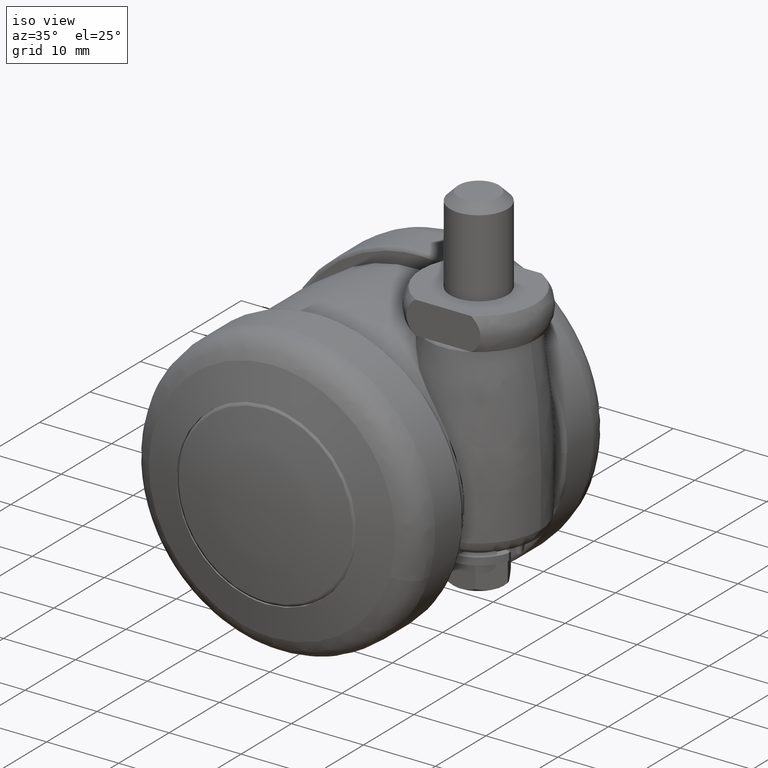
[diagram: clean part render]
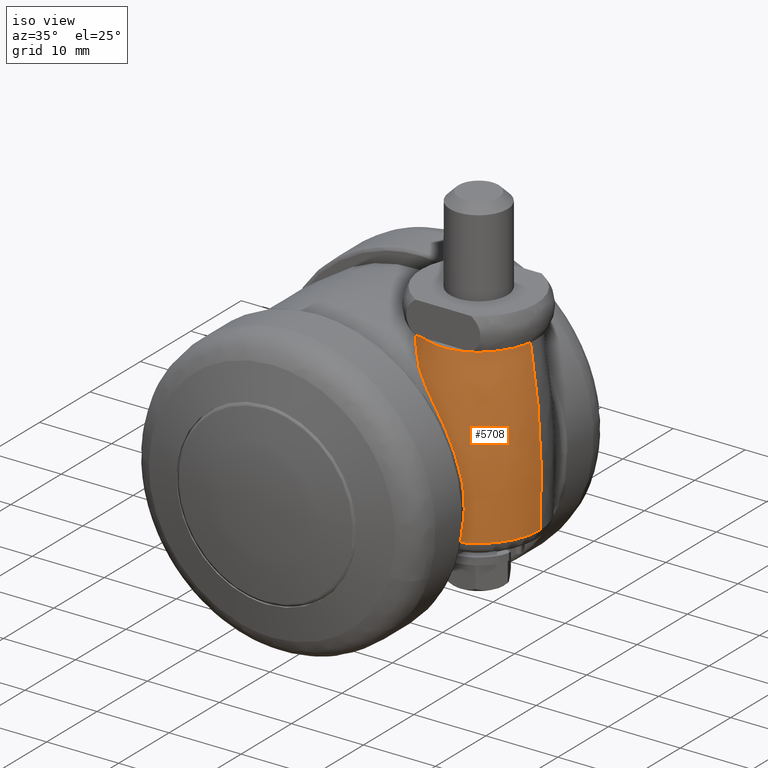
[diagram: same view with one face highlighted and labeled with its STEP entity id]
A machine part, iso view. The second image highlights one B-rep face of the part: STEP entity #5708.
In plain terms, the highlighted face is a freeform B-spline surface patch.
Its self-contained STEP definition (entity closure, byte-faithful):
#4605=CARTESIAN_POINT('',(9.469562980736400,-4.558344511186321,18.587648668325151));
#4606=VERTEX_POINT('',#4605);
#4632=CARTESIAN_POINT('',(22.166813595573341,0.000018812376593,18.587667433410850));
#4633=VERTEX_POINT('',#4632);
#4634=CARTESIAN_POINT('',(22.166813595573338,0.000018812376593,18.587667433410854));
#4635=CARTESIAN_POINT('',(22.166820623013216,-5.032931095471879,18.587665067983547));
#4636=CARTESIAN_POINT('',(17.432674891505240,-6.741328736548574,18.587658067311470));
#4637=CARTESIAN_POINT('',(12.681906281545443,-8.455725028267974,18.587651042058134));
#4638=CARTESIAN_POINT('',(9.469562980736400,-4.558344511186321,18.587648668325151));
#4646=(BOUNDED_CURVE()B_SPLINE_CURVE(2,(#4634,#4635,#4636,#4637,#4638),.UNSPECIFIED.,.F.,.U.)B_SPLINE_CURVE_WITH_KNOTS((3,2,3),(0.500715487659152,0.750000000000000,1.0),.UNSPECIFIED.)CURVE()GEOMETRIC_REPRESENTATION_ITEM()RATIONAL_B_SPLINE_CURVE((0.998957888644687,0.817936874594578,1.0,0.817414323401201,1.0))REPRESENTATION_ITEM(''));
#4647=EDGE_CURVE('',#4633,#4606,#4646,.T.);
#5566=CARTESIAN_POINT('',(23.545500375795619,0.000000415544947,-4.766490020556413));
#5567=VERTEX_POINT('',#5566);
#5568=CARTESIAN_POINT('',(23.545500375795616,0.000000415544947,-4.766490020556413));
#5569=CARTESIAN_POINT('',(24.231514440257477,0.000009613960770,6.991781408170732));
#5570=CARTESIAN_POINT('',(22.166813595573341,0.000018812376593,18.587667433410854));
#5578=(BOUNDED_CURVE()B_SPLINE_CURVE(2,(#5568,#5569,#5570),.UNSPECIFIED.,.F.,.U.)B_SPLINE_CURVE_WITH_KNOTS((3,3),(0.431725213207381,0.706914619218559),.UNSPECIFIED.)CURVE()GEOMETRIC_REPRESENTATION_ITEM()RATIONAL_B_SPLINE_CURVE((0.957236199646177,0.953961265613268,0.963886331076210))REPRESENTATION_ITEM(''));
#5579=EDGE_CURVE('',#5567,#4633,#5578,.T.);
#5631=CARTESIAN_POINT('',(23.470355027289411,0.092915016359539,-5.936482803830306));
#5632=CARTESIAN_POINT('',(24.377131483636724,0.102861842555668,6.996089585604014));
#5633=CARTESIAN_POINT('',(21.956117361943793,0.076304683381225,19.732351312355238));
#5634=CARTESIAN_POINT('',(23.470355027289404,0.046563292742930,-5.936482803830306));
#5635=CARTESIAN_POINT('',(24.377131483636724,0.051548030390085,6.996089585604013));
#5636=CARTESIAN_POINT('',(21.956117361943793,0.038239215243616,19.732351312355245));
#5637=CARTESIAN_POINT('',(23.470355027289415,-8.470355027289411,-5.936482803830309));
#5638=CARTESIAN_POINT('',(24.377131483636720,-9.377131483636724,6.996089585604016));
#5639=CARTESIAN_POINT('',(21.956117361943793,-6.956117361943795,19.732351312355245));
#5640=CARTESIAN_POINT('',(15.000000000000002,-8.470355027289410,-5.936482803830306));
#5641=CARTESIAN_POINT('',(14.999999999999998,-9.377131483636722,6.996089585604014));
#5642=CARTESIAN_POINT('',(15.000000000000002,-6.956117361943793,19.732351312355238));
#5643=CARTESIAN_POINT('',(10.320090883209039,-8.470355027289411,-5.936482803830309));
#5644=CARTESIAN_POINT('',(9.819092826896258,-9.377131483636724,6.996089585604016));
#5645=CARTESIAN_POINT('',(11.156713980140427,-6.956117361943795,19.732351312355252));
#5646=CARTESIAN_POINT('',(7.829160772843806,-4.508434214514500,-5.936482803830307));
#5647=CARTESIAN_POINT('',(7.061501310815590,-4.991075377434054,6.996089585604016));
#5648=CARTESIAN_POINT('',(9.111085180370385,-3.702465529924973,19.732351312355235));
#5656=(BOUNDED_SURFACE()B_SPLINE_SURFACE(2,2,((#5631,#5634,#5637,#5640,#5643,#5646),(#5632,#5635,#5638,#5641,#5644,#5647),(#5633,#5636,#5639,#5642,#5645,#5648)),.UNSPECIFIED.,.F.,.F.,.U.)B_SPLINE_SURFACE_WITH_KNOTS((3,3),(3,1,2,3),(0.0,25.820510259507149),(0.0,0.110256167357326,14.260235317386250,23.257407160079531),.UNSPECIFIED.)GEOMETRIC_REPRESENTATION_ITEM()RATIONAL_B_SPLINE_SURFACE(((0.961967179643957,0.959781739743152,0.677122837257671,0.957596299842348,0.779259080159280,0.827710973650760),(0.957620119602746,0.955444555546634,0.674062968177809,0.953268991490521,0.775737664792110,0.823970607684677),(0.969315044144095,0.967112911037322,0.682294954314679,0.964910777930550,0.785211351975488,0.834033339120561)))REPRESENTATION_ITEM('')SURFACE());
#5657=ORIENTED_EDGE('',*,*,#4647,.T.);
#5658=CARTESIAN_POINT('',(17.914251238862551,-8.033225897663630,-4.766488081632760));
#5659=VERTEX_POINT('',#5658);
#5660=CARTESIAN_POINT('',(9.469562980736400,-4.558344511186321,18.587648668325151));
#5661=CARTESIAN_POINT('',(9.522647911813259,-4.647192159379606,18.492672511386541));
#5662=CARTESIAN_POINT('',(9.630967525361267,-4.828485470338443,18.298874000073230));
#5663=CARTESIAN_POINT('',(9.803309649345174,-5.088995110247503,17.990791521869681));
#5664=CARTESIAN_POINT('',(9.987172281756660,-5.347327655211088,17.662948551871349));
#5665=CARTESIAN_POINT('',(10.183565591120560,-5.601630176878010,17.314521326099200));
#5666=CARTESIAN_POINT('',(10.417118154698720,-5.881276489180098,16.900472924935531));
#5667=CARTESIAN_POINT('',(10.693742502482840,-6.180646222318583,16.421655345625631));
#5668=CARTESIAN_POINT('',(11.021524352406990,-6.493619299257633,15.880922676385310));
#5669=CARTESIAN_POINT('',(11.322745473764400,-6.749481021051217,15.390513918397160));
#5670=CARTESIAN_POINT('',(11.605308315925029,-6.962251028202400,14.964946106803721));
#5671=CARTESIAN_POINT('',(11.872843277976180,-7.140057937106619,14.613224586828970));
#5672=CARTESIAN_POINT('',(12.168658252919149,-7.313739979288427,14.261516713845490));
#5673=CARTESIAN_POINT('',(12.495424011758249,-7.480226561177429,13.915722531995559));
#5674=CARTESIAN_POINT('',(12.831415062848279,-7.629609715812057,13.574395227473881));
#5675=CARTESIAN_POINT('',(13.153237643849740,-7.756680748529542,13.235706082130349));
#5676=CARTESIAN_POINT('',(13.453246345789941,-7.861616828497904,12.911460177974581));
#5677=CARTESIAN_POINT('',(14.165853423388540,-8.084412025193544,12.103384487530290));
#5678=CARTESIAN_POINT('',(15.249746560589140,-8.290528372416048,10.701837780389191));
#5679=CARTESIAN_POINT('',(16.527208780844830,-8.328478390659342,8.559554663196654));
#5680=CARTESIAN_POINT('',(17.562985986185488,-8.221487823285099,6.154453176994942));
#5681=CARTESIAN_POINT('',(18.289905542608299,-8.056737200824452,3.534899384163263));
#5682=CARTESIAN_POINT('',(18.548800543006440,-7.966981407795809,1.307773795213614));
#5683=CARTESIAN_POINT('',(18.565929674801058,-7.943558212951558,-0.363505969935154));
#5684=CARTESIAN_POINT('',(18.508655724735199,-7.945115745067452,-1.478207168380804));
#5685=CARTESIAN_POINT('',(18.381423423391759,-7.962893985948998,-2.584428035372303));
#5686=CARTESIAN_POINT('',(18.190247662137530,-7.993698802326354,-3.683659902290555));
#5687=CARTESIAN_POINT('',(18.006417525811891,-8.020026213523160,-4.404888277150308));
#5688=CARTESIAN_POINT('',(17.914251238862551,-8.033225897663630,-4.766488081632760));
#5689=B_SPLINE_CURVE_WITH_KNOTS('',3,(#5660,#5661,#5662,#5663,#5664,#5665,#5666,#5667,#5668,#5669,#5670,#5671,#5672,#5673,#5674,#5675,#5676,#5677,#5678,#5679,#5680,#5681,#5682,#5683,#5684,#5685,#5686,#5687,#5688),.UNSPECIFIED.,.F.,.U.,(4,1,1,1,1,1,1,1,1,1,1,1,1,1,1,1,1,1,1,1,1,1,1,1,1,1,4),(0.0,0.015706922783561,0.032049920220868,0.049044375485431,0.066703913947134,0.085040603246270,0.110711356817357,0.137003024173494,0.163918060823972,0.181127222105187,0.198862922980364,0.217157227501462,0.236040149829317,0.255205861199777,0.273251013001569,0.290171983054678,0.305968742894483,0.396270504114095,0.488539098153176,0.583984139401336,0.688461476578434,0.792017955945456,0.833781966881467,0.875302063472451,0.916740734417870,0.958256586671725,1.0),.UNSPECIFIED.);
#5690=EDGE_CURVE('',#4606,#5659,#5689,.T.);
#5691=ORIENTED_EDGE('',*,*,#5690,.T.);
#5692=CARTESIAN_POINT('',(23.545500375795616,0.000000415544947,-4.766490020556412));
#5693=CARTESIAN_POINT('',(23.545500723651884,-5.990350947888040,-4.766489051094586));
#5694=CARTESIAN_POINT('',(17.914251238862551,-8.033225897663630,-4.766488081632760));
#5702=(BOUNDED_CURVE()B_SPLINE_CURVE(2,(#5692,#5693,#5694),.UNSPECIFIED.,.F.,.U.)B_SPLINE_CURVE_WITH_KNOTS((3,3),(0.499999978821383,1.0),.UNSPECIFIED.)CURVE()GEOMETRIC_REPRESENTATION_ITEM()RATIONAL_B_SPLINE_CURVE((1.000000015346106,0.818849052534032,1.0))REPRESENTATION_ITEM(''));
#5703=EDGE_CURVE('',#5567,#5659,#5702,.T.);
#5704=ORIENTED_EDGE('',*,*,#5703,.F.);
#5705=ORIENTED_EDGE('',*,*,#5579,.T.);
#5706=EDGE_LOOP('',(#5657,#5691,#5704,#5705));
#5707=FACE_OUTER_BOUND('',#5706,.T.);
#5708=ADVANCED_FACE('',(#5707),#5656,.T.);